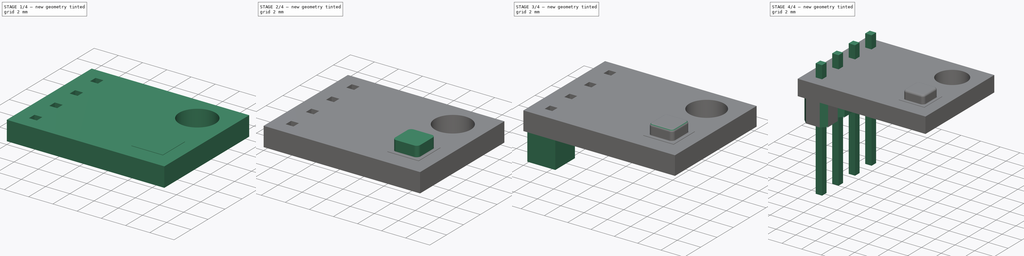
[diagram: build sequence overview — one tinted view per stage of 4, left to right]
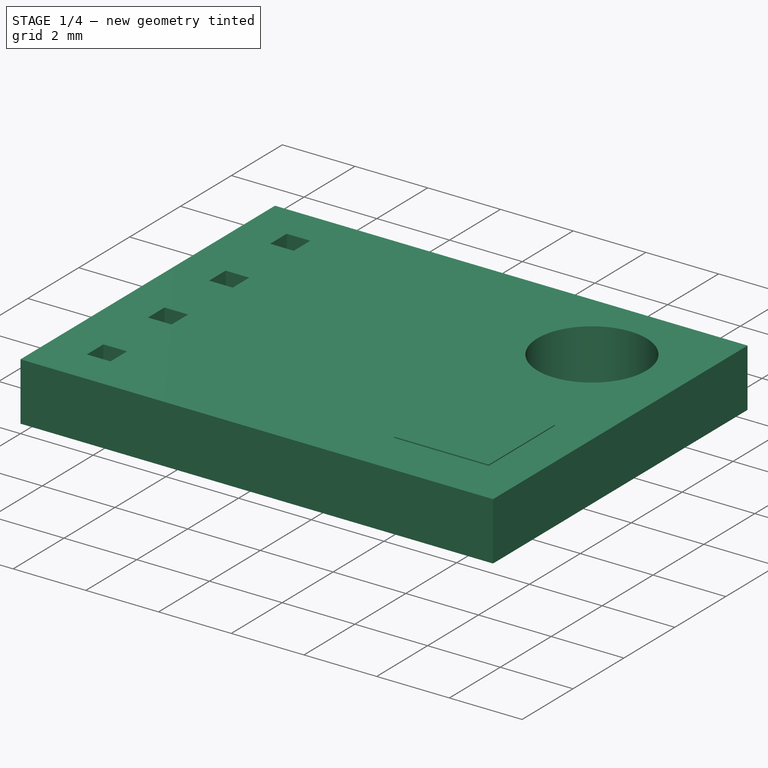
[diagram: stage 1 of 4 — iso view after this stage's code; geometry added in this stage tinted green]
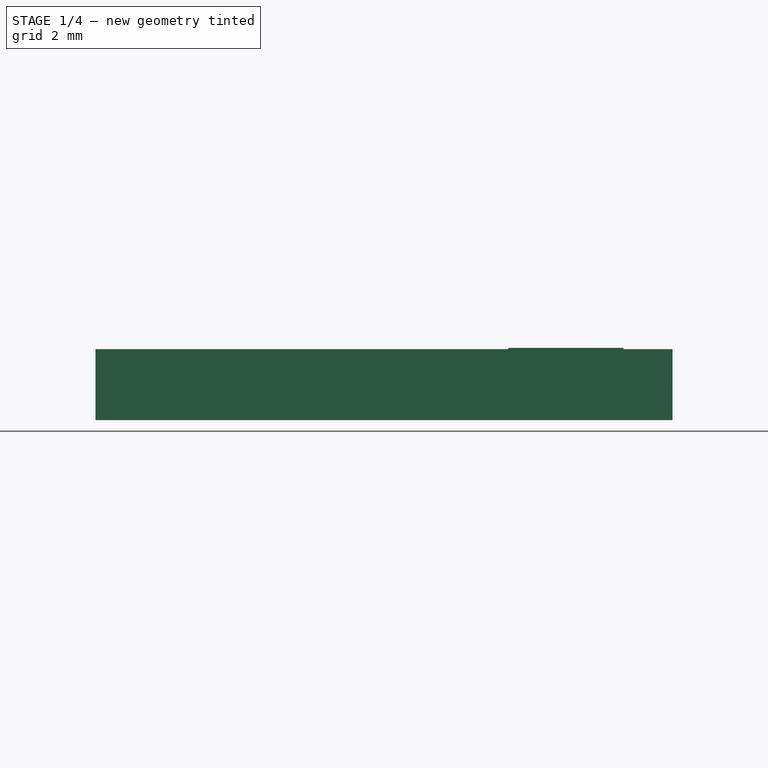
[diagram: stage 1 of 4 — front view after this stage's code; geometry added in this stage tinted green]
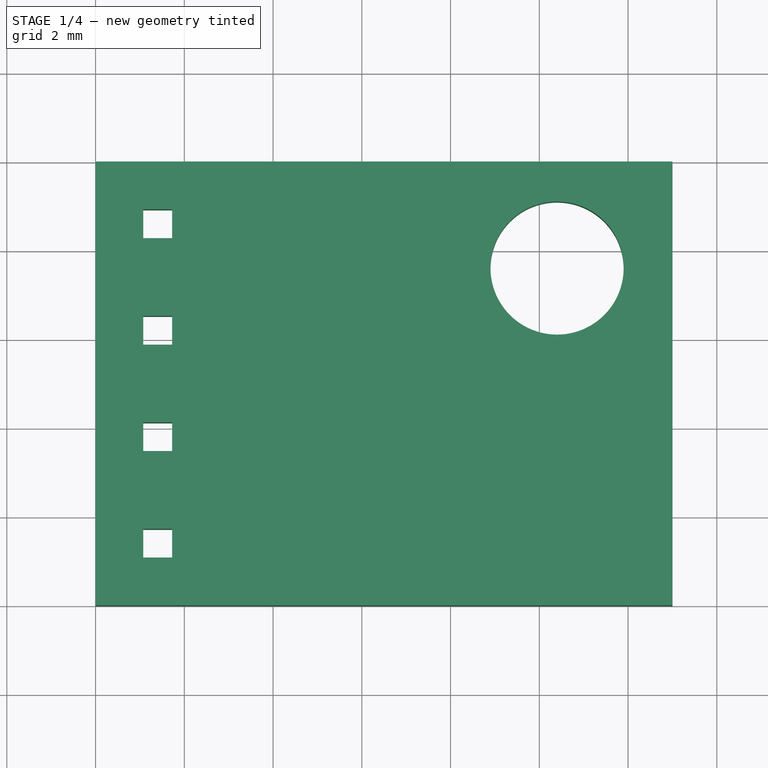
[diagram: stage 1 of 4 — top view after this stage's code; geometry added in this stage tinted green]
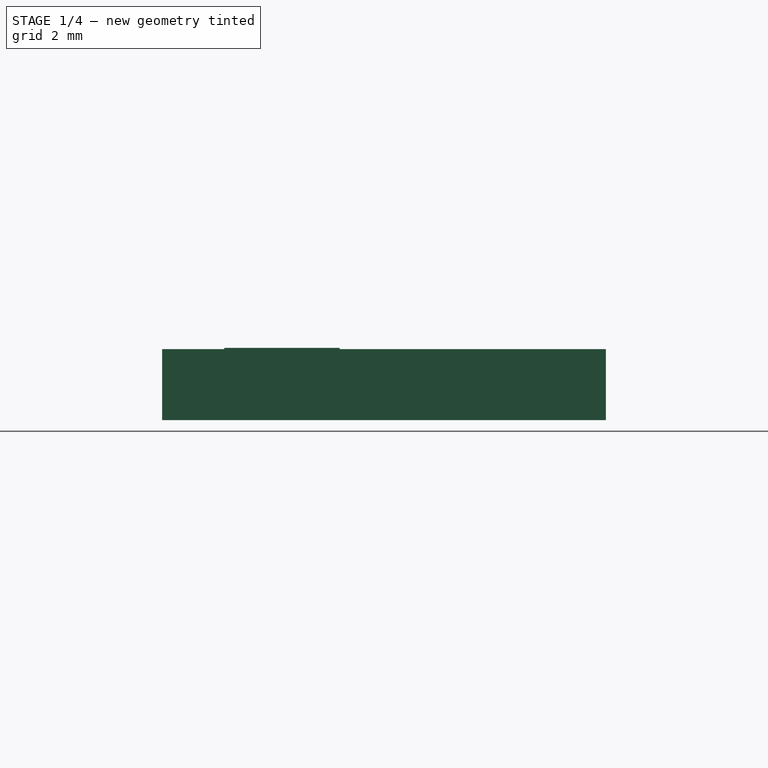
[diagram: stage 1 of 4 — right view after this stage's code; geometry added in this stage tinted green]
FCSTD DOCUMENT  (FreeCAD 1.1R20251125 (Git shallow))
Label: BME280-5V
License: All rights reserved
objects: Sketcher::SketchObject×8, PartDesign::Pad×7, PartDesign::Fillet×3, Image::ImagePlane×2, App::Point×1, PartDesign::Pocket×1, PartDesign::Chamfer×1, PartDesign::Body×1
note: 53 computed .brp shape members not serialized (recipe doc carries the construction recipe); baked Part::Feature solids carry a one-line shape summary decoded from their .brp

FEATURE [App::Point] Origin001  label="원점"
  Role = Origin
FEATURE [Sketcher::SketchObject] Sketch
  ArcFitTolerance = 1e-06
  AttachmentSupport = -> [Origin]
  ExternalTypes = [0]
  FullyConstrained = true
  MakeInternals = false
  MapMode = 5
  sketch-geometry (4):
    g0: LineSegment StartX=0 StartY=0 StartZ=0 EndX=13 EndY=0 EndZ=0
    g1: LineSegment StartX=13 StartY=0 StartZ=0 EndX=13 EndY=10 EndZ=0
    g2: LineSegment StartX=13 StartY=10 StartZ=0 EndX=0 EndY=10 EndZ=0
    g3: LineSegment StartX=0 StartY=10 StartZ=0 EndX=0 EndY=0 EndZ=0
  constraints (11):
    c: Coincident(g0,g1)
    c: Coincident(g1,g2)
    c: Coincident(g2,g3)
    c: Coincident(g3,g0)
    c: Horizontal(g0)
    c: Horizontal(g2)
    c: Vertical(g1)
    c: Vertical(g3)
    c: Distance(g1,g3) = 13
    c: Distance(g0,g2) = 10
    c: Coincident(g0,g-1)
FEATURE [PartDesign::Pad] Pad
  Direction = (0,0,1)
  Length = 1.6
  Length2 = 10
  Profile = -> Sketch
  ReferenceAxis = -> Sketch [N_Axis]
  Refine = true
  SideType = 0
  Suppressed = false
  Type = 0
  Type2 = 0
FEATURE [Image::ImagePlane] ImagePlane  label="PastedImage"
  Placement = pos=(6.7,4.7,0) rot=(0,0,1;1.5708rad)
  XSize = 15.9793
  YSize = 18.4721
FEATURE [Sketcher::SketchObject] Sketch001
  ArcFitTolerance = 1e-06
  AttachmentSupport = -> [Origin]
  ExternalTypes = [0]
  FullyConstrained = true
  MakeInternals = false
  MapMode = 5
  sketch-geometry (41):
    g0: LineSegment [constr] StartX=9.3 StartY=4 StartZ=0 EndX=9.3 EndY=1.4 EndZ=0
    g1: LineSegment [constr] StartX=9.3 StartY=1.4 StartZ=0 EndX=11.9 EndY=1.4 EndZ=0
    g2: LineSegment [constr] StartX=11.9 StartY=1.4 StartZ=0 EndX=11.9 EndY=4 EndZ=0
    g3: LineSegment [constr] StartX=11.9 StartY=4 StartZ=0 EndX=9.3 EndY=4 EndZ=0
    g4: Circle CenterX=10.4 CenterY=7.6 CenterZ=0 NormalX=0 NormalY=0 NormalZ=1 AngleXU=0 Radius=1.5
    g5: LineSegment [constr] StartX=0 StartY=0 StartZ=0 EndX=13 EndY=0 EndZ=0
    g6: LineSegment [constr] StartX=13 StartY=0 StartZ=0 EndX=13 EndY=10 EndZ=0
    g7: LineSegment [constr] StartX=13 StartY=10 StartZ=0 EndX=0 EndY=10 EndZ=0
    g8: LineSegment [constr] StartX=0 StartY=10 StartZ=0 EndX=0 EndY=0 EndZ=0
    g9: LineSegment [constr] StartX=0.2 StartY=9.8 StartZ=0 EndX=0.2 EndY=0.2 EndZ=0
    g10: LineSegment [constr] StartX=0.2 StartY=0.2 StartZ=0 EndX=2.6 EndY=0.2 EndZ=0
    g11: LineSegment [constr] StartX=2.6 StartY=0.2 StartZ=0 EndX=2.6 EndY=9.8 EndZ=0
    g12: LineSegment [constr] StartX=2.6 StartY=9.8 StartZ=0 EndX=0.2 EndY=9.8 EndZ=0
    g13: LineSegment StartX=1.075 StartY=8.925 StartZ=0 EndX=1.075 EndY=8.275 EndZ=0
    g14: LineSegment StartX=1.075 StartY=8.275 StartZ=0 EndX=1.725 EndY=8.275 EndZ=0
    g15: LineSegment StartX=1.725 StartY=8.275 StartZ=0 EndX=1.725 EndY=8.925 EndZ=0
    g16: LineSegment StartX=1.725 StartY=8.925 StartZ=0 EndX=1.075 EndY=8.925 EndZ=0
    g17: LineSegment StartX=1.075 StartY=6.525 StartZ=0 EndX=1.075 EndY=5.875 EndZ=0
    g18: LineSegment StartX=1.075 StartY=5.875 StartZ=0 EndX=1.725 EndY=5.875 EndZ=0
    g19: LineSegment StartX=1.725 StartY=5.875 StartZ=0 EndX=1.725 EndY=6.525 EndZ=0
    g20: LineSegment StartX=1.725 StartY=6.525 StartZ=0 EndX=1.075 EndY=6.525 EndZ=0
    g21: LineSegment StartX=1.075 StartY=4.125 StartZ=0 EndX=1.075 EndY=3.475 EndZ=0
    g22: LineSegment StartX=1.075 StartY=3.475 StartZ=0 EndX=1.725 EndY=3.475 EndZ=0
    g23: LineSegment StartX=1.725 StartY=3.475 StartZ=0 EndX=1.725 EndY=4.125 EndZ=0
    g24: LineSegment StartX=1.725 StartY=4.125 StartZ=0 EndX=1.075 EndY=4.125 EndZ=0
    g25: LineSegment StartX=1.075 StartY=1.725 StartZ=0 EndX=1.075 EndY=1.075 EndZ=0
    g26: LineSegment StartX=1.075 StartY=1.075 StartZ=0 EndX=1.725 EndY=1.075 EndZ=0
    g27: LineSegment StartX=1.725 StartY=1.075 StartZ=0 EndX=1.725 EndY=1.725 EndZ=0
    g28: LineSegment StartX=1.725 StartY=1.725 StartZ=0 EndX=1.075 EndY=1.725 EndZ=0
    g29: GeomPoint X=1.4 Y=9.8 Z=0
    g30: GeomPoint X=1.4 Y=8.6 Z=0
    g31: GeomPoint X=2.6 Y=7.4 Z=0
    g32: GeomPoint X=2.6 Y=5 Z=0
    g33: GeomPoint X=2.6 Y=2.6 Z=0
    g34: GeomPoint X=2.6 Y=6.2 Z=0
    g35: GeomPoint X=1.4 Y=6.2 Z=0
    g36: GeomPoint X=2.6 Y=3.8 Z=0
    g37: GeomPoint X=1.4 Y=3.8 Z=0
    g38: GeomPoint X=1.4 Y=1.4 Z=0
    g39: GeomPoint X=2.6 Y=1.4 Z=0
    g40: GeomPoint X=2.6 Y=8.6 Z=0
  constraints (101):
    c: Coincident(g0,g1)
    c: Coincident(g1,g2)
    c: Coincident(g2,g3)
    c: Coincident(g3,g0)
    c: Vertical(g0)
    c: Vertical(g2)
    c: Horizontal(g1)
    c: Horizontal(g3)
    c: Distance(g0,g2) = 2.6
    c: Distance(g1,g3) = 2.6
    c: DistanceY(g-1,g0) = 1.4
    c: DistanceX(g-1,g0) = 9.3
    c: Radius(g4) = 1.5
    c: DistanceY(g-1,g4) = 7.6
    c: DistanceX(g-1,g4) = 10.4
    c: Coincident(g5,g6)
    c: Coincident(g6,g7)
    c: Coincident(g7,g8)
    c: Coincident(g8,g5)
    c: Horizontal(g5)
    c: Horizontal(g7)
    c: Vertical(g6)
    c: Vertical(g8)
    c: Distance(g6,g8) = 13
    c: Distance(g5,g7) = 10
    c: Coincident(g5,g-1)
    c: Coincident(g9,g10)
    c: Coincident(g10,g11)
    c: Coincident(g11,g12)
    c: Coincident(g12,g9)
    c: Vertical(g9)
    c: Vertical(g11)
    c: Horizontal(g10)
    c: Horizontal(g12)
    c: Distance(g9,g11) = 2.4
    c: Distance(g10,g12) = 9.6
    c: DistanceY(g9,g7) = 0.2
    c: DistanceX(g7,g9) = 0.2
    c: Coincident(g13,g14)
    c: Coincident(g14,g15)
    c: Coincident(g15,g16)
    c: Coincident(g16,g13)
    c: Vertical(g13)
    c: Vertical(g15)
    c: Horizontal(g14)
    c: Horizontal(g16)
    c: Distance(g13,g15) = 0.65
    c: Distance(g14,g16) = 0.65
    c: Coincident(g17,g18)
    c: Coincident(g21,g22)
    c: Coincident(g25,g26)
    c: Coincident(g18,g19)
    c: Coincident(g22,g23)
    c: Coincident(g26,g27)
    c: Coincident(g19,g20)
    c: Coincident(g23,g24)
    c: Coincident(g27,g28)
    c: Coincident(g20,g17)
    c: Coincident(g24,g21)
    c: Coincident(g28,g25)
    c: Vertical(g17)
    c: Vertical(g21)
    c: Vertical(g25)
    c: Vertical(g19)
    c: Vertical(g23)
    c: Vertical(g27)
    c: Horizontal(g18)
    c: Horizontal(g22)
    c: Horizontal(g26)
    c: Horizontal(g20)
    c: Horizontal(g24)
    c: Horizontal(g28)
    c: Distance(g17,g19) = 0.65
    c: Distance(g21,g23) = 0.65
    c: Distance(g25,g27) = 0.65
    c: Distance(g18,g20) = 0.65
    c: Distance(g22,g24) = 0.65
    c: Distance(g26,g28) = 0.65
    c: Vertical(g17,g13)
    c: Vertical(g21,g17)
    c: Vertical(g25,g21)
    c: Symmetric(g9,g11,g29)
    c: Symmetric(g13,g14,g30)
    c: Vertical(g30,g29)
    c: DistanceY(g31,g11) = 2.4
    c: DistanceY(g32,g31) = 2.4
    c: DistanceY(g33,g32) = 2.4
    c: Vertical(g31,g11)
    c: Vertical(g31,g32)
    c: Vertical(g33,g32)
    c: Symmetric(g27,g25,g38)
    c: Symmetric(g33,g10,g39)
    c: Symmetric(g32,g33,g36)
    c: Symmetric(g31,g32,g34)
    c: Symmetric(g19,g17,g35)
    c: Symmetric(g23,g21,g37)
    c: Horizontal(g39,g38)
    c: Horizontal(g36,g37)
    c: Horizontal(g34,g35)
    c: Symmetric(g11,g31,g40)
    c: Horizontal(g40,g30)
FEATURE [PartDesign::Pocket] Pocket
  BaseFeature = -> Pad
  Direction = (0,0,-1)
  Length = 5
  Length2 = 5
  Profile = -> Sketch001
  ReferenceAxis = -> Sketch001 [N_Axis]
  Refine = true
  Reversed = true
  SideType = 0
  Suppressed = false
  Type = 0
  Type2 = 0
FEATURE [Sketcher::SketchObject] Sketch002
  ArcFitTolerance = 1e-06
  AttachmentSupport = -> [Pocket]
  ExternalTypes = [0]
  FullyConstrained = true
  MakeInternals = false
  MapMode = 5
  Placement = pos=(0,0,1.6) rot=(0,0,1;0rad)
  sketch-geometry (4):
    g0: LineSegment StartX=9.3 StartY=4 StartZ=0 EndX=9.3 EndY=1.4 EndZ=0
    g1: LineSegment StartX=9.3 StartY=1.4 StartZ=0 EndX=11.9 EndY=1.4 EndZ=0
    g2: LineSegment StartX=11.9 StartY=1.4 StartZ=0 EndX=11.9 EndY=4 EndZ=0
    g3: LineSegment StartX=11.9 StartY=4 StartZ=0 EndX=9.3 EndY=4 EndZ=0
  constraints (12):
    c: Coincident(g0,g1)
    c: Coincident(g1,g2)
    c: Coincident(g2,g3)
    c: Coincident(g3,g0)
    c: Vertical(g0)
    c: Vertical(g2)
    c: Horizontal(g1)
    c: Horizontal(g3)
    c: Distance(g0,g2) = 2.6
    c: Distance(g1,g3) = 2.6
    c: DistanceY(g-1,g0) = 1.4
    c: DistanceX(g-1,g0) = 9.3
FEATURE [PartDesign::Pad] Pad001
  BaseFeature = -> Pocket
  Direction = (0,0,1)
  Length = 0.03
  Length2 = 10
  Profile = -> Sketch002
  ReferenceAxis = -> Sketch002 [N_Axis]
  Refine = true
  SideType = 0
  Suppressed = false
  Type = 0
  Type2 = 0
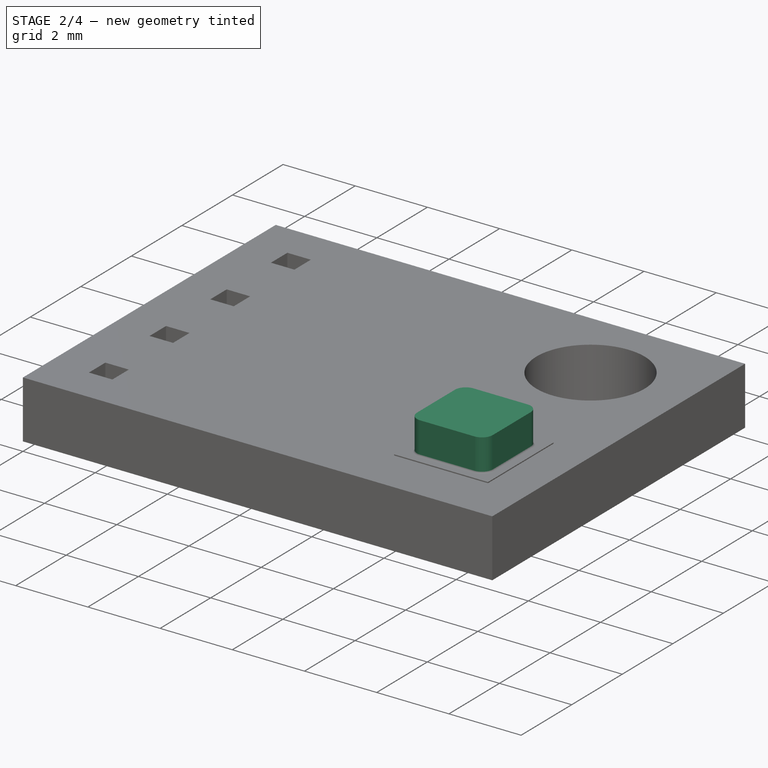
[diagram: stage 2 of 4 — iso view after this stage's code; geometry added in this stage tinted green]
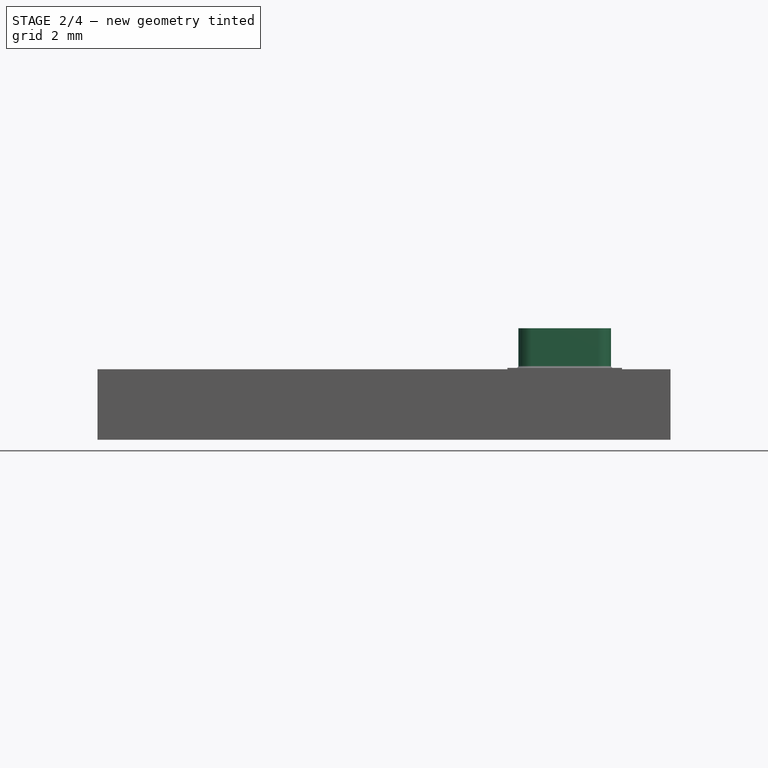
[diagram: stage 2 of 4 — front view after this stage's code; geometry added in this stage tinted green]
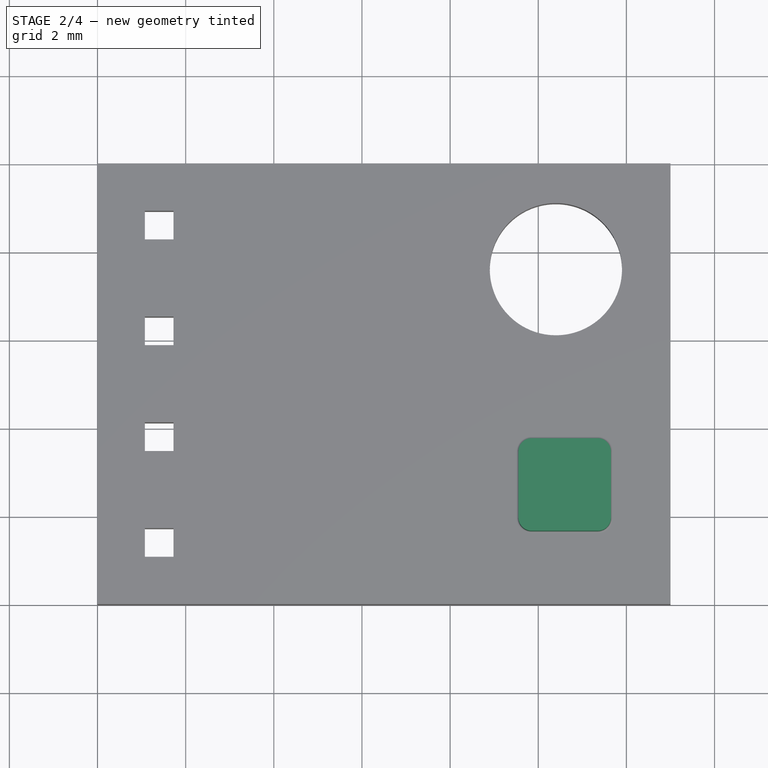
[diagram: stage 2 of 4 — top view after this stage's code; geometry added in this stage tinted green]
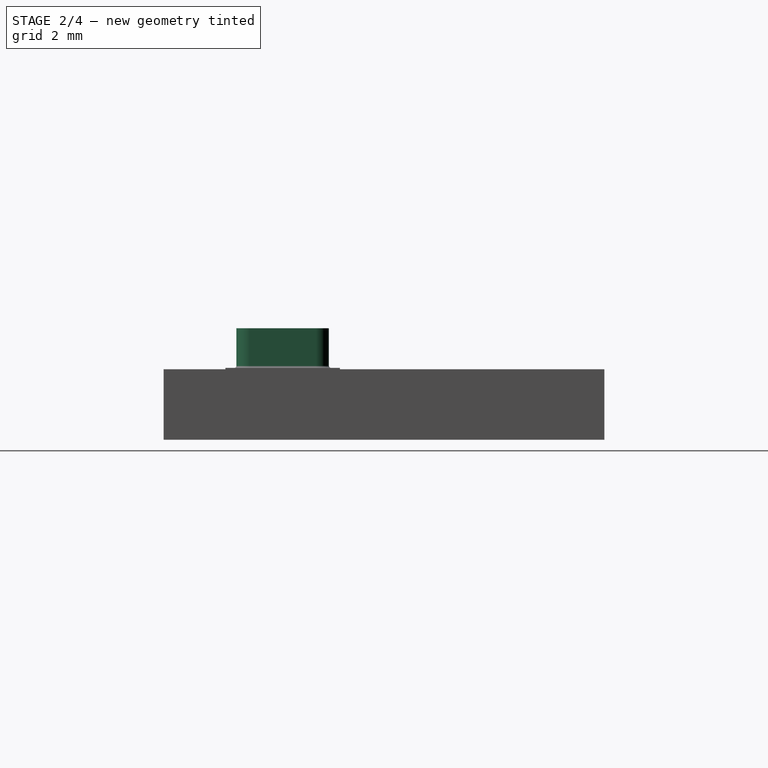
[diagram: stage 2 of 4 — right view after this stage's code; geometry added in this stage tinted green]
FEATURE [Sketcher::SketchObject] Sketch003
  ArcFitTolerance = 1e-06
  AttachmentSupport = -> [Pad001]
  ExternalGeometry = -> [Pad001]
  ExternalTypes = [0,0]
  FullyConstrained = true
  MakeInternals = false
  MapMode = 5
  Placement = pos=(0,0,1.63) rot=(0,0,1;0rad)
  sketch-geometry (5):
    g0: LineSegment StartX=9.55 StartY=3.75 StartZ=0 EndX=9.55 EndY=1.65 EndZ=0
    g1: LineSegment StartX=9.55 StartY=1.65 StartZ=0 EndX=11.65 EndY=1.65 EndZ=0
    g2: LineSegment StartX=11.65 StartY=1.65 StartZ=0 EndX=11.65 EndY=3.75 EndZ=0
    g3: LineSegment StartX=11.65 StartY=3.75 StartZ=0 EndX=9.55 EndY=3.75 EndZ=0
    g4: GeomPoint X=10.6 Y=2.7 Z=0
  constraints (12):
    c: Coincident(g0,g1)
    c: Coincident(g1,g2)
    c: Coincident(g2,g3)
    c: Coincident(g3,g0)
    c: Vertical(g0)
    c: Vertical(g2)
    c: Horizontal(g1)
    c: Horizontal(g3)
    c: Distance(g0,g2) = 2.1
    c: Distance(g1,g3) = 2.1
    c: Symmetric(g1,g0,g4)
    c: Symmetric(g-3,g-4,g4)
FEATURE [PartDesign::Pad] Pad002
  BaseFeature = -> Pad001
  Direction = (0,0,1)
  Length = 0.9
  Length2 = 10
  Profile = -> Sketch003
  ReferenceAxis = -> Sketch003 [N_Axis]
  Refine = true
  SideType = 0
  Suppressed = false
  Type = 0
  Type2 = 0
FEATURE [PartDesign::Fillet] Fillet
  Base = -> Pad002 [Edge81,Edge80,Edge83,Edge85]
  BaseFeature = -> Pad002
  Radius = 0.3
  Refine = true
  SupportTransform = false
  Suppressed = false
  UseAllEdges = false
FEATURE [PartDesign::Fillet] Fillet001
  Base = -> Fillet [Edge3]
  BaseFeature = -> Fillet
  Radius = 0.05
  Refine = true
  SupportTransform = false
  Suppressed = false
  UseAllEdges = false
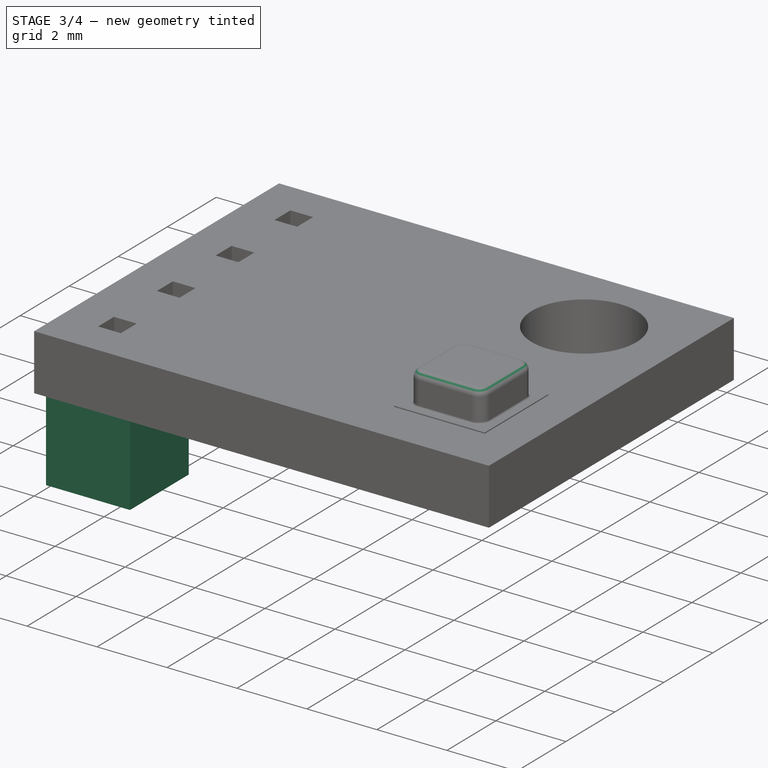
[diagram: stage 3 of 4 — iso view after this stage's code; geometry added in this stage tinted green]
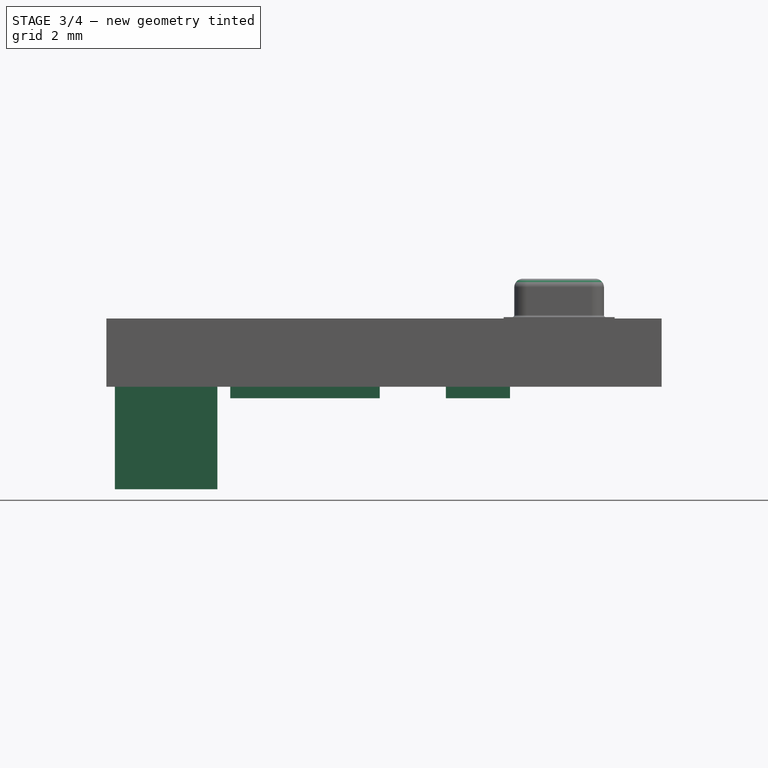
[diagram: stage 3 of 4 — front view after this stage's code; geometry added in this stage tinted green]
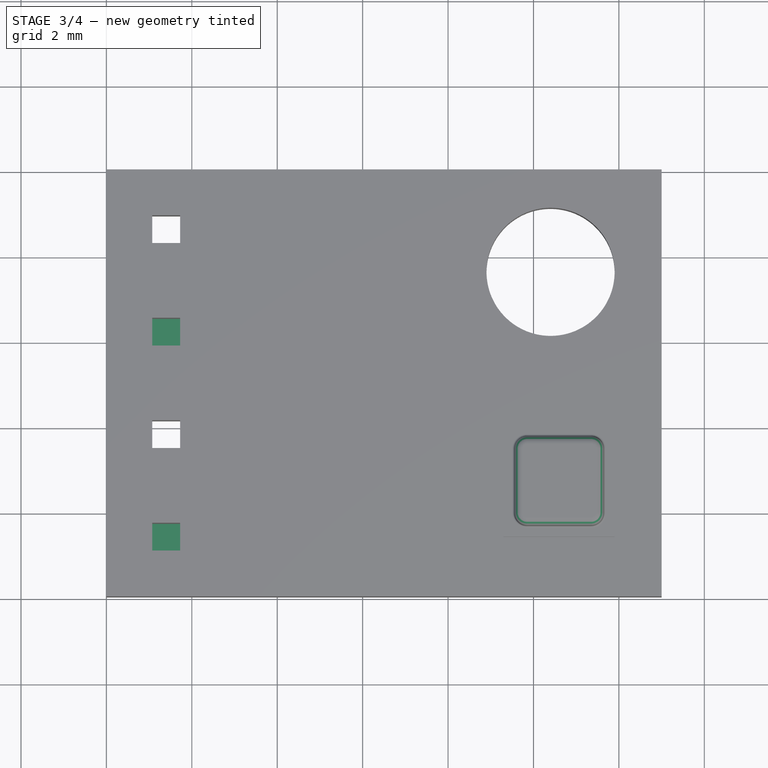
[diagram: stage 3 of 4 — top view after this stage's code; geometry added in this stage tinted green]
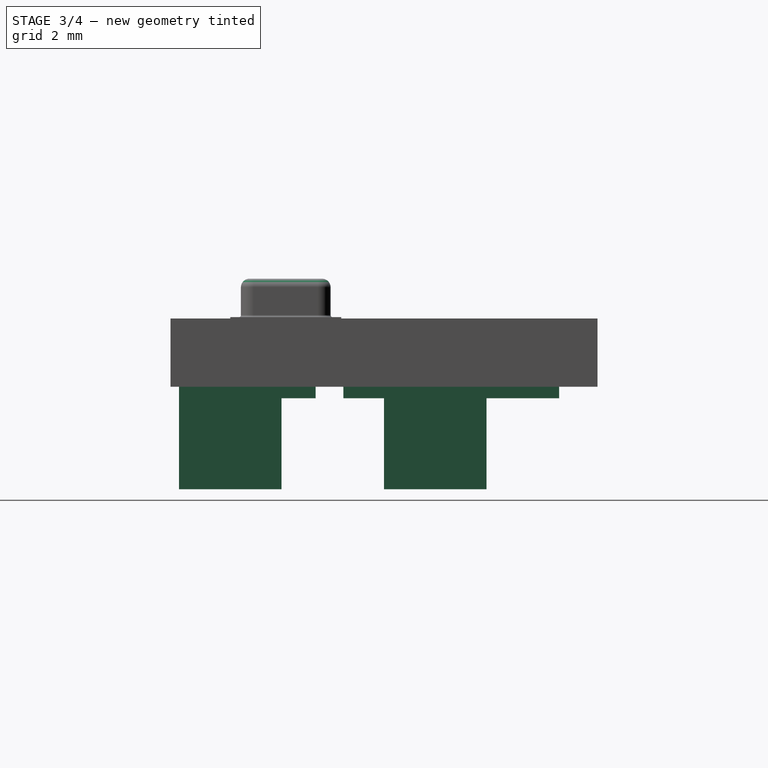
[diagram: stage 3 of 4 — right view after this stage's code; geometry added in this stage tinted green]
FEATURE [PartDesign::Fillet] Fillet002
  Base = -> Fillet001 [Edge42]
  BaseFeature = -> Fillet001
  Radius = 0.2
  Refine = true
  SupportTransform = false
  Suppressed = false
  UseAllEdges = false
FEATURE [Image::ImagePlane] ImagePlane001  label="PastedImage001"
  Placement = pos=(4.52472,5.8221,-8e-16) rot=(0.872496,-0.488621,0;3.14159rad)
  XSize = 19.086
  YSize = 19.4739
FEATURE [Sketcher::SketchObject] Sketch004
  ArcFitTolerance = 1e-06
  AttachmentSupport = -> [Fillet002]
  ExternalTypes = [0]
  FullyConstrained = true
  MakeInternals = false
  MapMode = 5
  Placement = pos=(0,0,0) rot=(1,0,0;3.14159rad)
  sketch-geometry (28):
    g0: LineSegment StartX=5.1 StartY=-1.1 StartZ=0 EndX=5.1 EndY=-3.1 EndZ=0
    g1: LineSegment StartX=5.1 StartY=-3.1 StartZ=0 EndX=6.2 EndY=-3.1 EndZ=0
    g2: LineSegment StartX=6.2 StartY=-3.1 StartZ=0 EndX=6.2 EndY=-1.1 EndZ=0
    g3: LineSegment StartX=6.2 StartY=-1.1 StartZ=0 EndX=5.1 EndY=-1.1 EndZ=0
    g4: LineSegment StartX=7.95 StartY=-0.9 StartZ=0 EndX=7.95 EndY=-1.8 EndZ=0
    g5: LineSegment StartX=7.95 StartY=-1.8 StartZ=0 EndX=9.45 EndY=-1.8 EndZ=0
    g6: LineSegment StartX=9.45 StartY=-1.8 StartZ=0 EndX=9.45 EndY=-0.9 EndZ=0
    g7: LineSegment StartX=9.45 StartY=-0.9 StartZ=0 EndX=7.95 EndY=-0.9 EndZ=0
    g8: LineSegment StartX=7.95 StartY=-2.5 StartZ=0 EndX=7.95 EndY=-3.4 EndZ=0
    g9: LineSegment StartX=7.95 StartY=-3.4 StartZ=0 EndX=9.45 EndY=-3.4 EndZ=0
    g10: LineSegment StartX=9.45 StartY=-3.4 StartZ=0 EndX=9.45 EndY=-2.5 EndZ=0
    g11: LineSegment StartX=9.45 StartY=-2.5 StartZ=0 EndX=7.95 EndY=-2.5 EndZ=0
    g12: LineSegment StartX=7.95 StartY=-4.05 StartZ=0 EndX=7.95 EndY=-4.8 EndZ=0
    g13: LineSegment StartX=7.95 StartY=-4.8 StartZ=0 EndX=9.45 EndY=-4.8 EndZ=0
    g14: LineSegment StartX=9.45 StartY=-4.8 StartZ=0 EndX=9.45 EndY=-4.05 EndZ=0
    g15: LineSegment StartX=9.45 StartY=-4.05 StartZ=0 EndX=7.95 EndY=-4.05 EndZ=0
    g16: LineSegment StartX=5.3 StartY=-6.2 StartZ=0 EndX=5.3 EndY=-9.1 EndZ=0
    g17: LineSegment StartX=5.3 StartY=-9.1 StartZ=0 EndX=6.4 EndY=-9.1 EndZ=0
    g18: LineSegment StartX=6.4 StartY=-9.1 StartZ=0 EndX=6.4 EndY=-6.2 EndZ=0
    g19: LineSegment StartX=6.4 StartY=-6.2 StartZ=0 EndX=5.3 EndY=-6.2 EndZ=0
    g20: LineSegment StartX=3.2 StartY=-4.1 StartZ=0 EndX=3.2 EndY=-5.5 EndZ=0
    g21: LineSegment StartX=3.2 StartY=-5.5 StartZ=0 EndX=6.4 EndY=-5.5 EndZ=0
    g22: LineSegment StartX=6.4 StartY=-5.5 StartZ=0 EndX=6.4 EndY=-4.1 EndZ=0
    g23: LineSegment StartX=6.4 StartY=-4.1 StartZ=0 EndX=3.2 EndY=-4.1 EndZ=0
    g24: LineSegment StartX=2.9 StartY=-7.2 StartZ=0 EndX=2.9 EndY=-8.8 EndZ=0
    g25: LineSegment StartX=2.9 StartY=-8.8 StartZ=0 EndX=3.7 EndY=-8.8 EndZ=0
    g26: LineSegment StartX=3.7 StartY=-8.8 StartZ=0 EndX=3.7 EndY=-7.2 EndZ=0
    g27: LineSegment StartX=3.7 StartY=-7.2 StartZ=0 EndX=2.9 EndY=-7.2 EndZ=0
  constraints (84):
    c: Coincident(g0,g1)
    c: Coincident(g1,g2)
    c: Coincident(g2,g3)
    c: Coincident(g3,g0)
    c: Vertical(g0)
    c: Vertical(g2)
    c: Horizontal(g1)
    c: Horizontal(g3)
    c: Coincident(g4,g5)
    c: Coincident(g5,g6)
    c: Coincident(g6,g7)
    c: Coincident(g7,g4)
    c: Vertical(g4)
    c: Vertical(g6)
    c: Horizontal(g5)
    c: Horizontal(g7)
    c: Coincident(g8,g9)
    c: Coincident(g9,g10)
    c: Coincident(g10,g11)
    c: Coincident(g11,g8)
    c: Vertical(g8)
    c: Vertical(g10)
    c: Horizontal(g9)
    c: Horizontal(g11)
    c: Coincident(g12,g13)
    c: Coincident(g13,g14)
    c: Coincident(g14,g15)
    c: Coincident(g15,g12)
    c: Vertical(g12)
    c: Vertical(g14)
    c: Horizontal(g13)
    c: Horizontal(g15)
    c: Coincident(g16,g17)
    c: Coincident(g17,g18)
    c: Coincident(g18,g19)
    c: Coincident(g19,g16)
    c: Vertical(g16)
    c: Vertical(g18)
    c: Horizontal(g17)
    c: Horizontal(g19)
    c: Coincident(g20,g21)
    c: Coincident(g21,g22)
    c: Coincident(g22,g23)
    c: Coincident(g23,g20)
    c: Vertical(g20)
    c: Vertical(g22)
    c: Horizontal(g21)
    c: Horizontal(g23)
    c: Coincident(g24,g25)
    c: Coincident(g25,g26)
    c: Coincident(g26,g27)
    c: Coincident(g27,g24)
    c: Vertical(g24)
    c: Vertical(g26)
    c: Horizontal(g25)
    c: Horizontal(g27)
    c: DistanceY(g0,g0) = 2
    c: DistanceX(g3,g3) = 1.1
    c: DistanceX(g-1,g0) = 5.1
    c: Equal(g4,g8)
    c: Equal(g7,g11)
    c: Equal(g11,g15)
    c: DistanceY(g4,g4) = 0.9
    c: DistanceX(g7,g7) = 1.5
    c: Vertical(g4,g8)
    c: Vertical(g8,g12)
    c: DistanceY(g12,g12) = 0.75
    c: DistanceY(g4,g-1) = 0.9
    c: DistanceY(g8,g4) = 0.7
    c: DistanceY(g12,g8) = 0.65
    c: DistanceX(g-1,g4) = 7.95
    c: DistanceY(g0,g-1) = 1.1
    c: DistanceY(g22,g0) = 1
    c: DistanceX(g23,g23) = 3.2
    c: DistanceX(g-1,g20) = 3.2
    c: DistanceY(g22,g22) = 1.4
    c: DistanceY(g18,g18) = 2.9
    c: DistanceY(g16,g-1) = 6.2
    c: DistanceX(g-1,g16) = 5.3
    c: DistanceX(g19,g19) = 1.1
    c: DistanceY(g26,g26) = 1.6
    c: DistanceX(g27,g27) = 0.8
    c: DistanceX(g-1,g24) = 2.9
    c: DistanceY(g24,g-1) = 7.2
FEATURE [PartDesign::Pad] Pad003
  BaseFeature = -> Fillet002
  Direction = (0,0,-1)
  Length = 0.27
  Length2 = 10
  Profile = -> Sketch004
  ReferenceAxis = -> Sketch004 [N_Axis]
  Refine = true
  SideType = 0
  Suppressed = false
  Type = 0
  Type2 = 0
FEATURE [Sketcher::SketchObject] Sketch005
  ArcFitTolerance = 1e-06
  AttachmentSupport = -> [Pad003]
  ExternalTypes = [0]
  FullyConstrained = true
  MakeInternals = false
  MapMode = 5
  Placement = pos=(0,0,0) rot=(1,0,0;3.14159rad)
  sketch-geometry (8):
    g0: LineSegment StartX=0.2 StartY=-0.2 StartZ=0 EndX=0.2 EndY=-2.6 EndZ=0
    g1: LineSegment StartX=0.2 StartY=-2.6 StartZ=0 EndX=2.6 EndY=-2.6 EndZ=0
    g2: LineSegment StartX=2.6 StartY=-2.6 StartZ=0 EndX=2.6 EndY=-0.2 EndZ=0
    g3: LineSegment StartX=2.6 StartY=-0.2 StartZ=0 EndX=0.2 EndY=-0.2 EndZ=0
    g4: LineSegment StartX=0.2 StartY=-5 StartZ=0 EndX=0.2 EndY=-7.4 EndZ=0
    g5: LineSegment StartX=0.2 StartY=-7.4 StartZ=0 EndX=2.6 EndY=-7.4 EndZ=0
    g6: LineSegment StartX=2.6 StartY=-7.4 StartZ=0 EndX=2.6 EndY=-5 EndZ=0
    g7: LineSegment StartX=2.6 StartY=-5 StartZ=0 EndX=0.2 EndY=-5 EndZ=0
  constraints (24):
    c: Coincident(g0,g1)
    c: Coincident(g1,g2)
    c: Coincident(g2,g3)
    c: Coincident(g3,g0)
    c: Vertical(g0)
    c: Vertical(g2)
    c: Horizontal(g1)
    c: Horizontal(g3)
    c: Distance(g0,g2) = 2.4
    c: Distance(g1,g3) = 2.4
    c: Coincident(g4,g5)
    c: Coincident(g5,g6)
    c: Coincident(g6,g7)
    c: Coincident(g7,g4)
    c: Vertical(g4)
    c: Vertical(g6)
    c: Horizontal(g5)
    c: Horizontal(g7)
    c: Distance(g4,g6) = 2.4
    c: Distance(g5,g7) = 2.4
    c: Vertical(g0,g4)
    c: DistanceY(g4,g0) = 2.4
    c: DistanceY(g0,g-1) = 0.2
    c: DistanceX(g-1,g0) = 0.2
FEATURE [PartDesign::Pad] Pad004
  BaseFeature = -> Pad003
  Direction = (0,0,-1)
  Length = 2.4
  Length2 = 10
  Profile = -> Sketch005
  ReferenceAxis = -> Sketch005 [N_Axis]
  Refine = true
  SideType = 0
  Suppressed = false
  Type = 0
  Type2 = 0
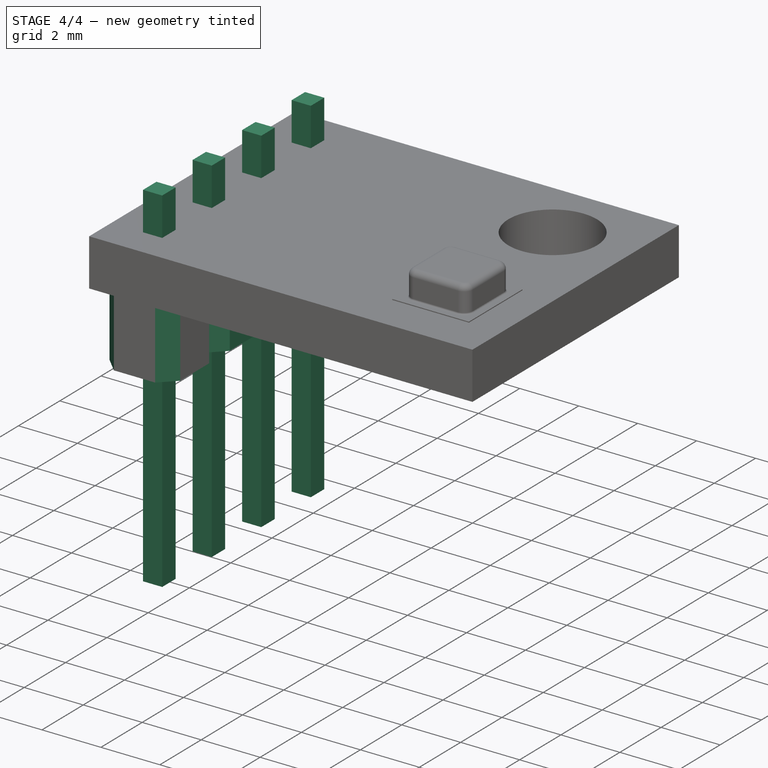
[diagram: stage 4 of 4 — iso view after this stage's code; geometry added in this stage tinted green]
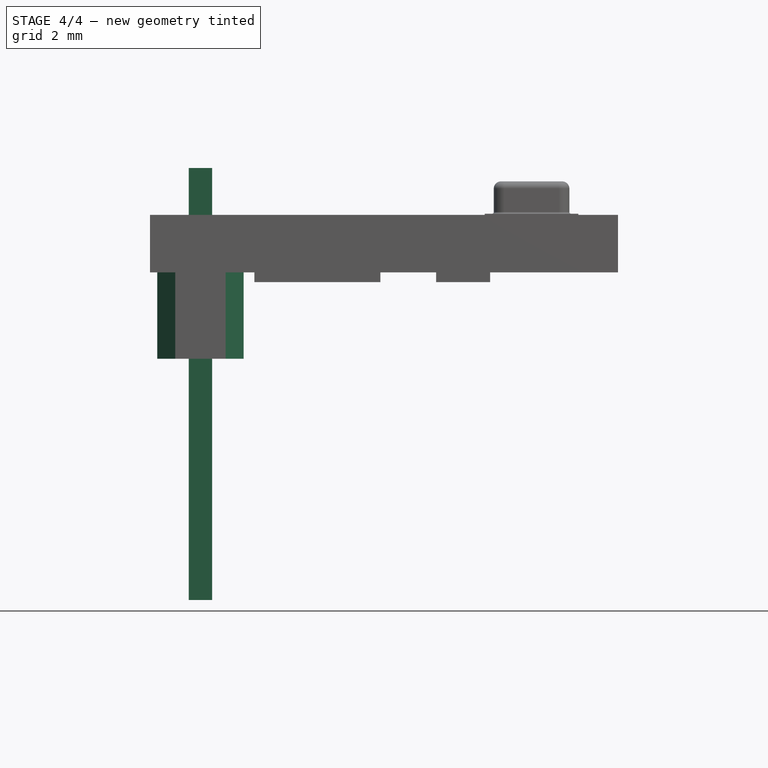
[diagram: stage 4 of 4 — front view after this stage's code; geometry added in this stage tinted green]
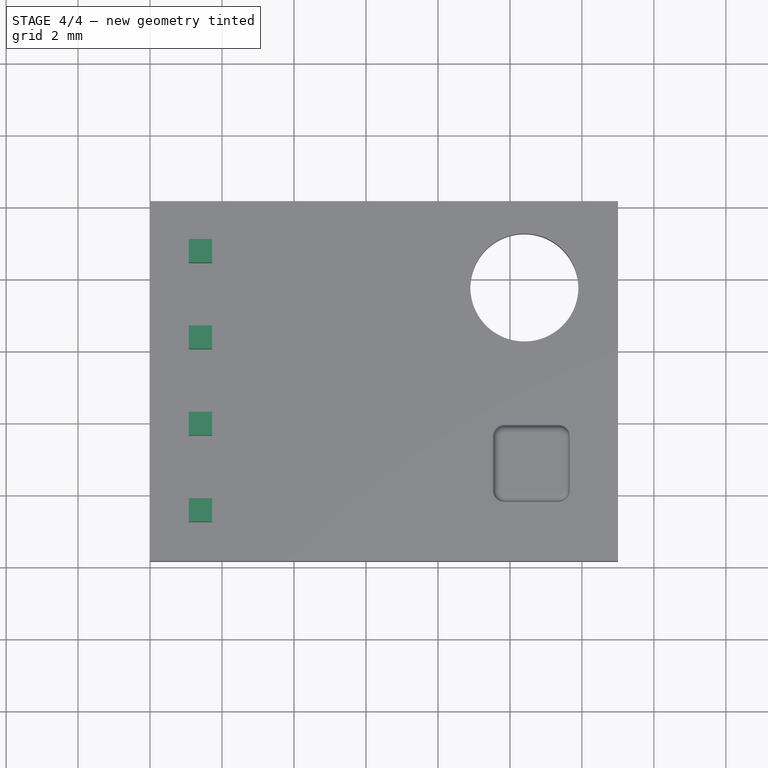
[diagram: stage 4 of 4 — top view after this stage's code; geometry added in this stage tinted green]
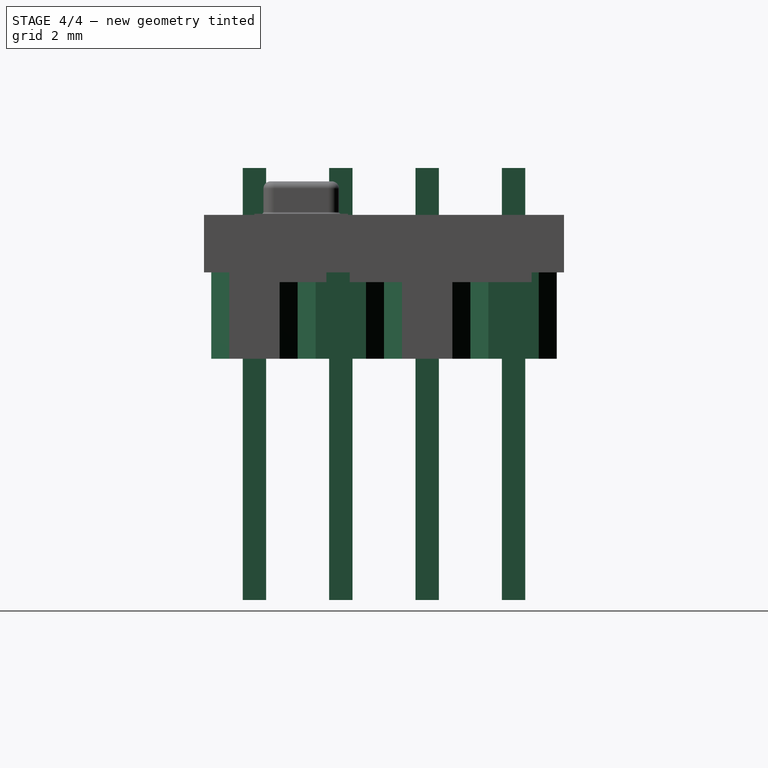
[diagram: stage 4 of 4 — right view after this stage's code; geometry added in this stage tinted green]
FEATURE [PartDesign::Chamfer] Chamfer
  Angle = 45
  Base = -> Pad004 [Edge208,Edge209,Edge211,Edge171,Edge168,Edge169,Edge213,Edge173]
  BaseFeature = -> Pad004
  ChamferType = 0
  FlipDirection = false
  Refine = true
  Size = 0.5
  Size2 = 1
  SupportTransform = false
  Suppressed = false
  UseAllEdges = false
FEATURE [Sketcher::SketchObject] Sketch006
  ArcFitTolerance = 1e-06
  AttachmentSupport = -> [Chamfer]
  ExternalTypes = [0]
  FullyConstrained = true
  MakeInternals = false
  MapMode = 5
  Placement = pos=(0,0,0) rot=(1,0,0;3.14159rad)
  sketch-geometry (24):
    g0: LineSegment [constr] StartX=0.2 StartY=-2.6 StartZ=0 EndX=0.2 EndY=-5 EndZ=0
    g1: LineSegment [constr] StartX=0.2 StartY=-5 StartZ=0 EndX=2.6 EndY=-5 EndZ=0
    g2: LineSegment [constr] StartX=2.6 StartY=-5 StartZ=0 EndX=2.6 EndY=-2.6 EndZ=0
    g3: LineSegment [constr] StartX=2.6 StartY=-2.6 StartZ=0 EndX=0.2 EndY=-2.6 EndZ=0
    g4: LineSegment [constr] StartX=0.2 StartY=-7.4 StartZ=0 EndX=0.2 EndY=-9.8 EndZ=0
    g5: LineSegment [constr] StartX=0.2 StartY=-9.8 StartZ=0 EndX=2.6 EndY=-9.8 EndZ=0
    g6: LineSegment [constr] StartX=2.6 StartY=-9.8 StartZ=0 EndX=2.6 EndY=-7.4 EndZ=0
    g7: LineSegment [constr] StartX=2.6 StartY=-7.4 StartZ=0 EndX=0.2 EndY=-7.4 EndZ=0
    g8: LineSegment StartX=0.7 StartY=-2.6 StartZ=0 EndX=2.1 EndY=-2.6 EndZ=0
    g9: LineSegment StartX=2.1 StartY=-2.6 StartZ=0 EndX=2.6 EndY=-3.1 EndZ=0
    g10: LineSegment StartX=2.6 StartY=-3.1 StartZ=0 EndX=2.6 EndY=-4.5 EndZ=0
    g11: LineSegment StartX=2.6 StartY=-4.5 StartZ=0 EndX=2.1 EndY=-5 EndZ=0
    g12: LineSegment StartX=2.1 StartY=-5 StartZ=0 EndX=0.7 EndY=-5 EndZ=0
    g13: LineSegment StartX=0.7 StartY=-5 StartZ=0 EndX=0.2 EndY=-4.5 EndZ=0
    g14: LineSegment StartX=0.2 StartY=-4.5 StartZ=0 EndX=0.2 EndY=-3.1 EndZ=0
    g15: LineSegment StartX=0.2 StartY=-3.1 StartZ=0 EndX=0.7 EndY=-2.6 EndZ=0
    g16: LineSegment StartX=0.7 StartY=-7.4 StartZ=0 EndX=2.1 EndY=-7.4 EndZ=0
    g17: LineSegment StartX=2.1 StartY=-7.4 StartZ=0 EndX=2.6 EndY=-7.9 EndZ=0
    g18: LineSegment StartX=2.6 StartY=-7.9 StartZ=0 EndX=2.6 EndY=-9.3 EndZ=0
    g19: LineSegment StartX=2.6 StartY=-9.3 StartZ=0 EndX=2.1 EndY=-9.8 EndZ=0
    g20: LineSegment StartX=2.1 StartY=-9.8 StartZ=0 EndX=0.7 EndY=-9.8 EndZ=0
    g21: LineSegment StartX=0.7 StartY=-9.8 StartZ=0 EndX=0.2 EndY=-9.3 EndZ=0
    g22: LineSegment StartX=0.2 StartY=-9.3 StartZ=0 EndX=0.2 EndY=-7.9 EndZ=0
    g23: LineSegment StartX=0.2 StartY=-7.9 StartZ=0 EndX=0.7 EndY=-7.4 EndZ=0
  constraints (72):
    c: Coincident(g0,g1)
    c: Coincident(g1,g2)
    c: Coincident(g2,g3)
    c: Coincident(g3,g0)
    c: Vertical(g0)
    c: Vertical(g2)
    c: Horizontal(g1)
    c: Horizontal(g3)
    c: Distance(g0,g2) = 2.4
    c: Distance(g1,g3) = 2.4
    c: Coincident(g4,g5)
    c: Coincident(g5,g6)
    c: Coincident(g6,g7)
    c: Coincident(g7,g4)
    c: Vertical(g4)
    c: Vertical(g6)
    c: Horizontal(g5)
    c: Horizontal(g7)
    c: Distance(g4,g6) = 2.4
    c: Distance(g5,g7) = 2.4
    c: Vertical(g1,g6)
    c: DistanceY(g6,g1) = 2.4
    c: DistanceY(g0,g-1) = 2.6
    c: DistanceX(g-1,g0) = 0.2
    c: Horizontal(g8)
    c: Coincident(g8,g9)
    c: Coincident(g9,g10)
    c: Vertical(g10)
    c: Coincident(g10,g11)
    c: Coincident(g11,g12)
    c: Horizontal(g12)
    c: Coincident(g12,g13)
    c: Coincident(g13,g14)
    c: Vertical(g14)
    c: Coincident(g14,g15)
    c: Coincident(g15,g8)
    c: PointOnObject(g14,g0)
    c: PointOnObject(g8,g3)
    c: PointOnObject(g10,g2)
    c: PointOnObject(g11,g1)
    c: Equal(g15,g11)
    c: Equal(g9,g13)
    c: Equal(g15,g13)
    c: Equal(g8,g14)
    c: Equal(g14,g12)
    c: Equal(g12,g10)
    c: Angle(g15,g0) = 0.785398
    c: Distance(g14,g0) = 0.5
    c: Horizontal(g16)
    c: Coincident(g16,g17)
    c: Coincident(g17,g18)
    c: Vertical(g18)
    c: Coincident(g18,g19)
    c: Coincident(g19,g20)
    c: Horizontal(g20)
    c: Coincident(g20,g21)
    c: Coincident(g21,g22)
    c: Vertical(g22)
    c: Coincident(g22,g23)
    c: Coincident(g23,g16)
    c: Equal(g23,g19)
    c: Equal(g17,g21)
    c: Equal(g23,g21)
    c: Equal(g16,g22)
    c: Equal(g22,g20)
    c: Equal(g20,g18)
    c: PointOnObject(g20,g5)
    c: PointOnObject(g22,g4)
    c: PointOnObject(g16,g7)
    c: PointOnObject(g17,g6)
    c: Angle(g23,g4) = 0.785398
    c: Distance(g22,g4) = 0.5
FEATURE [PartDesign::Pad] Pad005
  BaseFeature = -> Chamfer
  Direction = (0,0,-1)
  Length = 2.4
  Length2 = 10
  Profile = -> Sketch006
  ReferenceAxis = -> Sketch006 [N_Axis]
  Refine = true
  SideType = 0
  Suppressed = false
  Type = 0
  Type2 = 0
FEATURE [Sketcher::SketchObject] Sketch007
  ArcFitTolerance = 1e-06
  AttachmentOffset = pos=(0,0,1.3) rot=(0,0,1;0rad)
  AttachmentSupport = -> [Pad005]
  ExternalGeometry = -> [Pad005]
  ExternalTypes = [0,0,0,0]
  FullyConstrained = false
  MakeInternals = false
  MapMode = 5
  Placement = pos=(0,0,2.9) rot=(0,0,1;0rad)
  sketch-geometry (19):
    g0: LineSegment StartX=1.725 StartY=8.925 StartZ=0 EndX=1.075 EndY=8.925 EndZ=0
    g1: LineSegment StartX=1.075 StartY=8.925 StartZ=0 EndX=1.075 EndY=8.275 EndZ=0
    g2: LineSegment StartX=1.075 StartY=8.275 StartZ=0 EndX=1.725 EndY=8.275 EndZ=0
    g3: LineSegment StartX=1.725 StartY=8.275 StartZ=0 EndX=1.725 EndY=8.925 EndZ=0
    g4: LineSegment StartX=1.725 StartY=6.525 StartZ=0 EndX=1.075 EndY=6.525 EndZ=0
    g5: LineSegment StartX=1.075 StartY=6.525 StartZ=0 EndX=1.075 EndY=5.875 EndZ=0
    g6: LineSegment StartX=1.075 StartY=5.875 StartZ=0 EndX=1.725 EndY=5.875 EndZ=0
    g7: LineSegment StartX=1.725 StartY=5.875 StartZ=0 EndX=1.725 EndY=6.525 EndZ=0
    g8: LineSegment [constr] StartX=1.075 StartY=6.525 StartZ=0 EndX=1.725 EndY=6.525 EndZ=0
    g9: LineSegment StartX=1.725 StartY=4.125 StartZ=0 EndX=1.075 EndY=4.125 EndZ=0
    g10: LineSegment StartX=1.075 StartY=4.125 StartZ=0 EndX=1.075 EndY=3.475 EndZ=0
    g11: LineSegment StartX=1.075 StartY=3.475 StartZ=0 EndX=1.725 EndY=3.475 EndZ=0
    g12: LineSegment StartX=1.725 StartY=3.475 StartZ=0 EndX=1.725 EndY=4.125 EndZ=0
    g13: LineSegment [constr] StartX=1.075 StartY=4.125 StartZ=0 EndX=1.725 EndY=4.125 EndZ=0
    g14: LineSegment StartX=1.725 StartY=1.725 StartZ=0 EndX=1.075 EndY=1.725 EndZ=0
    g15: LineSegment StartX=1.075 StartY=1.725 StartZ=0 EndX=1.075 EndY=1.075 EndZ=0
    g16: LineSegment StartX=1.075 StartY=1.075 StartZ=0 EndX=1.725 EndY=1.075 EndZ=0
    g17: LineSegment StartX=1.725 StartY=1.075 StartZ=0 EndX=1.725 EndY=1.725 EndZ=0
    g18: LineSegment [constr] StartX=1.075 StartY=1.725 StartZ=0 EndX=1.725 EndY=1.725 EndZ=0
  constraints (47):
    c: Coincident(g0,g1)
    c: Coincident(g1,g2)
    c: Coincident(g2,g3)
    c: Coincident(g3,g0)
    c: Horizontal(g0)
    c: Horizontal(g2)
    c: Vertical(g1)
    c: Vertical(g3)
    c: Distance(g1,g3) = 0.65
    c: Distance(g0,g2) = 0.65
    c: Coincident(g0,g-3)
    c: Coincident(g4,g5)
    c: Coincident(g9,g10)
    c: Coincident(g14,g15)
    c: Coincident(g5,g6)
    c: Coincident(g10,g11)
    c: Coincident(g15,g16)
    c: Coincident(g6,g7)
    c: Coincident(g11,g12)
    c: Coincident(g16,g17)
    c: Coincident(g7,g4)
    c: Coincident(g12,g9)
    c: Coincident(g17,g14)
    c: Horizontal(g4)
    c: Horizontal(g9)
    c: Horizontal(g14)
    c: Horizontal(g6)
    c: Horizontal(g11)
    c: Horizontal(g16)
    c: Vertical(g5)
    c: Vertical(g10)
    c: Vertical(g15)
    c: Vertical(g7)
    c: Vertical(g12)
    c: Vertical(g17)
    c: Distance(g5,g7) = 0.65
    c: Distance(g10,g12) = 0.65
    c: Distance(g15,g17) = 0.65
    c: Distance(g4,g6) = 0.65
    c: Distance(g9,g11) = 0.65
    c: Distance(g14,g16) = 0.65
    c: Coincident(g4,g8)
    c: Coincident(g9,g13)
    c: Coincident(g14,g18)
    c: Coincident(g4,g-4)
    c: Coincident(g9,g-5)
    c: Coincident(g14,g-6)
FEATURE [PartDesign::Pad] Pad006
  BaseFeature = -> Pad005
  Direction = (0,0,1)
  Length = 12
  Length2 = 10
  Profile = -> Sketch007
  ReferenceAxis = -> Sketch007 [N_Axis]
  Refine = true
  Reversed = true
  SideType = 0
  Suppressed = false
  Type = 0
  Type2 = 0
FEATURE [PartDesign::Body] Body  label="BME280-5V"
  AllowCompound = true
  Group = -> [Sketch,Pad,Sketch001,Pocket,Sketch002,Pad001,Sketch003,Pad002,Fillet,Fillet001,Fillet002,Sketch004,Pad003,Sketch005,Pad004,Chamfer,Sketch006,Pad005,Sketch007,Pad006]
  Origin = -> Origin
  Tip = -> Pad006
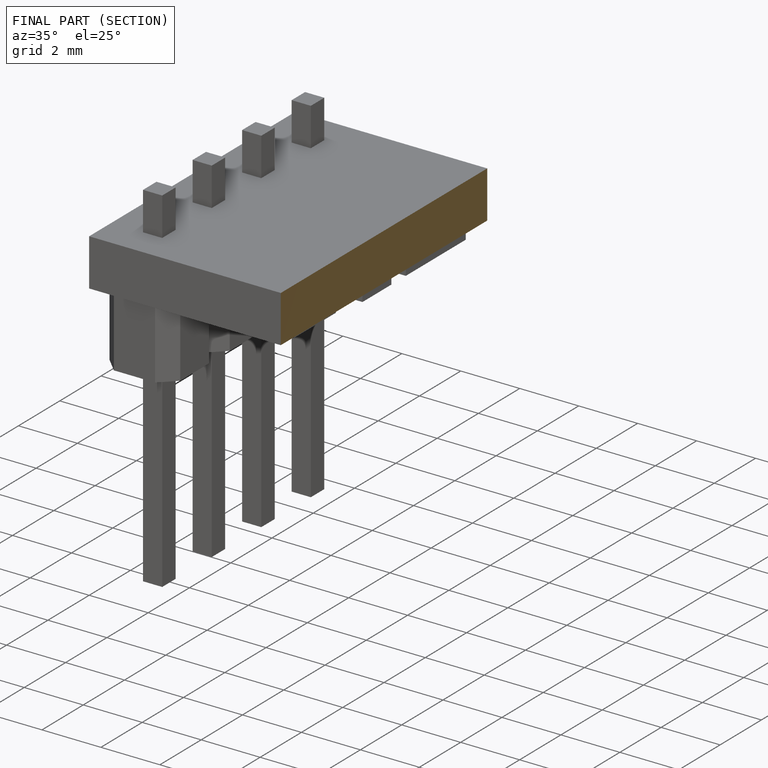
[diagram: finished part — half-section view (interior)]
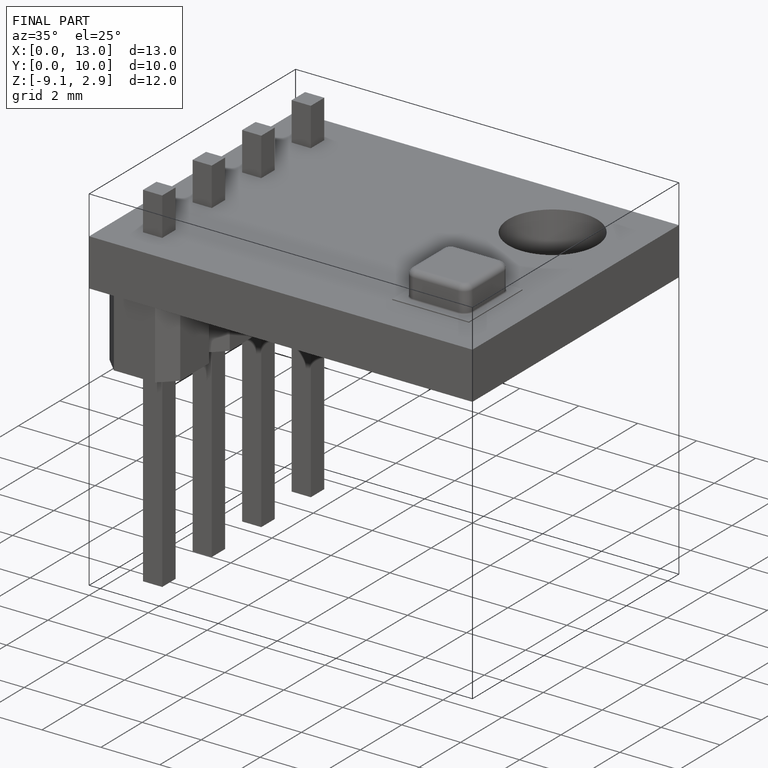
[diagram: finished part — iso view with bounding-box wireframe]
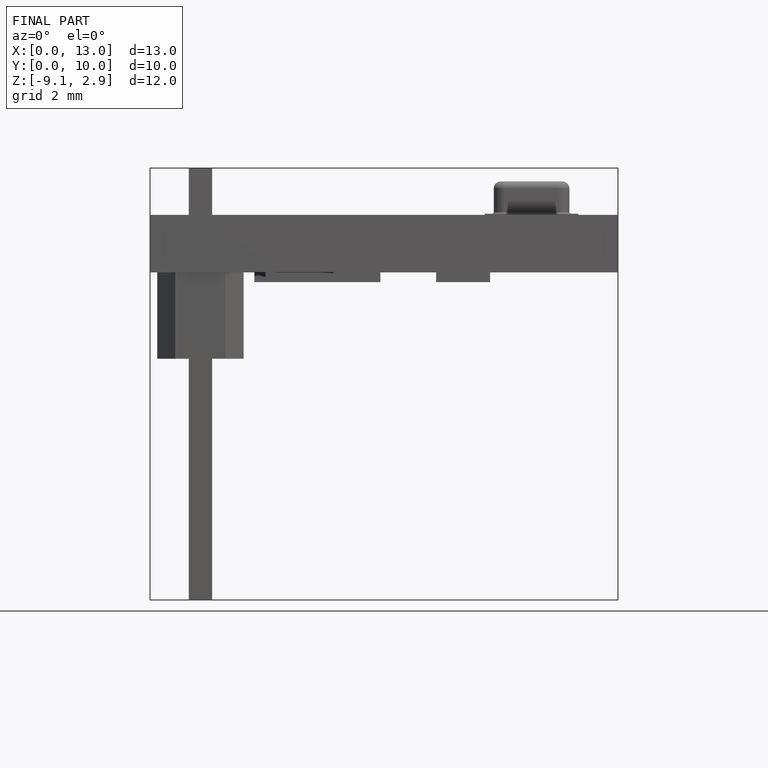
[diagram: finished part — front view with bounding-box wireframe]
